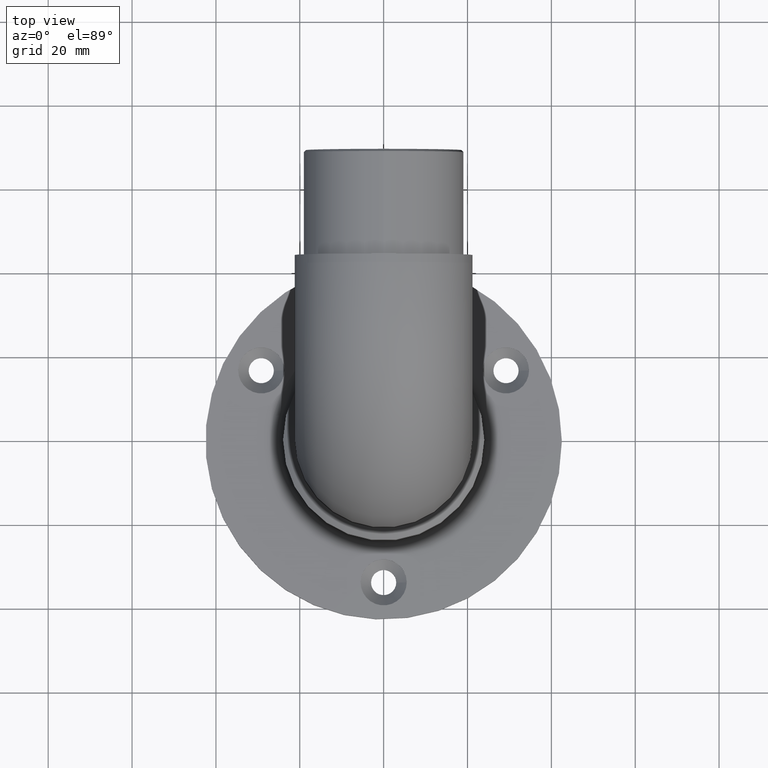
[diagram: clean part render]
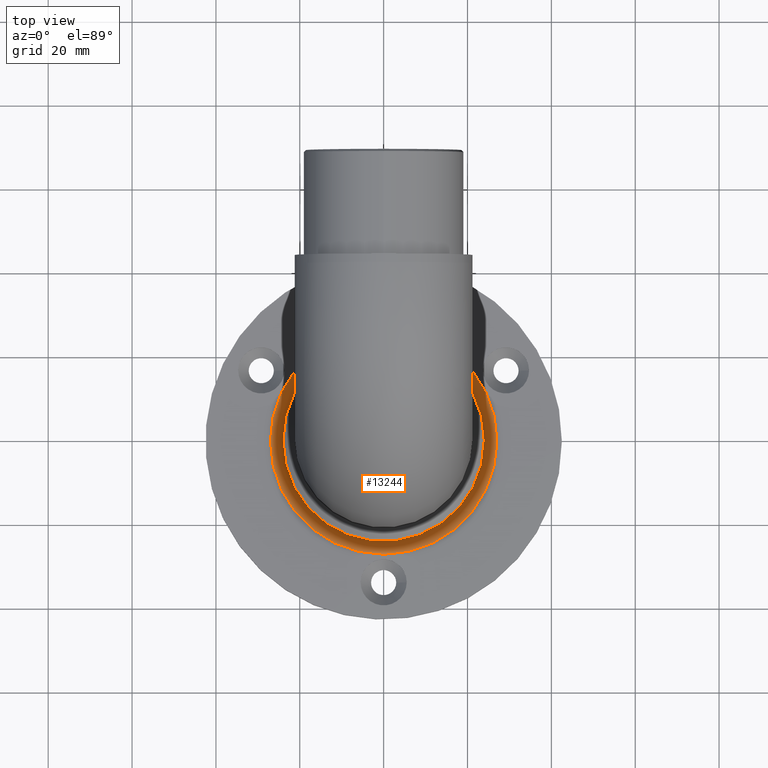
[diagram: same view with one face highlighted and labeled with its STEP entity id]
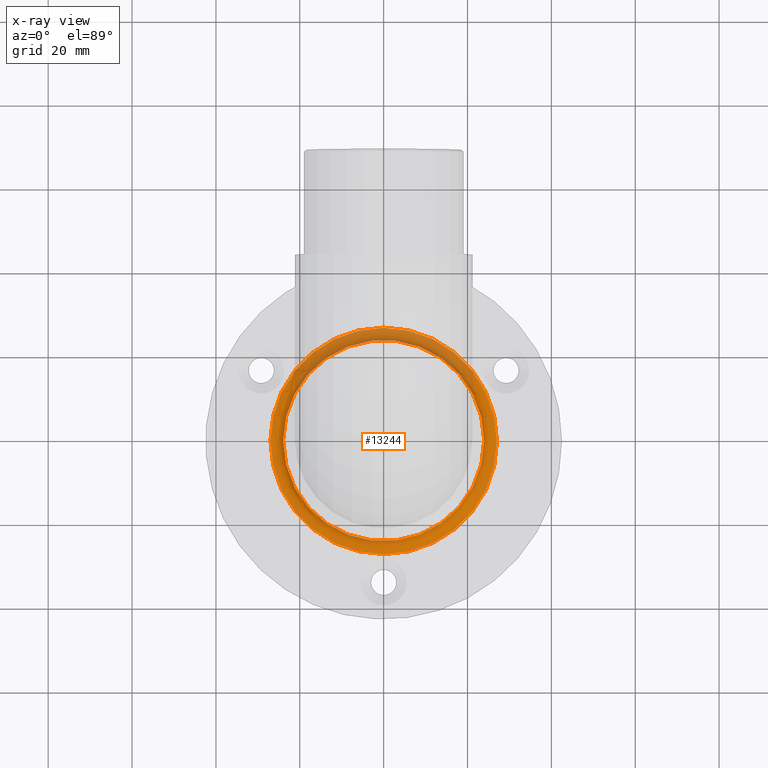
[diagram: x-ray of the same camera — body ghosted, the highlighted face saturated]
A machine part, top view. The second image highlights one B-rep face of the part: STEP entity #13244.
The next image is the same camera in x-ray: the body ghosted, the highlighted face saturated — about 31% of this face is hidden behind the body in this view.
In plain terms, the highlighted toroidal blend (fillet) surface has major radius 27 mm and minor (blend) radius 3 mm.
Its self-contained STEP definition (entity closure, byte-faithful):
#283 = CARTESIAN_POINT ( 'NONE',  ( 0.000000000000000000, 0.000000000000000000, 8.000000000000000000 ) ) ;
#1845 = FACE_OUTER_BOUND ( 'NONE', #8943, .T. ) ;
#3700 = DIRECTION ( 'NONE',  ( 1.000000000000000000, 0.000000000000000000, 0.000000000000000000 ) ) ;
#4578 = CIRCLE ( 'NONE', #15050, 27.00000000000000355 ) ;
#4721 = EDGE_CURVE ( 'NONE', #9221, #9221, #14777, .T. ) ;
#5066 = TOROIDAL_SURFACE ( 'NONE', #7639, 27.00000000000000355, 3.000000000000000000 ) ;
#5870 = AXIS2_PLACEMENT_3D ( 'NONE', #15122, #7883, #14793 ) ;
#6955 = DIRECTION ( 'NONE',  ( -0.000000000000000000, -0.000000000000000000, -1.000000000000000000 ) ) ;
#7508 = CARTESIAN_POINT ( 'NONE',  ( 27.00000000000000355, 0.000000000000000000, 5.000000000000000000 ) ) ;
#7639 = AXIS2_PLACEMENT_3D ( 'NONE', #283, #8581, #3700 ) ;
#7883 = DIRECTION ( 'NONE',  ( 0.000000000000000000, 0.000000000000000000, 1.000000000000000000 ) ) ;
#8095 = EDGE_LOOP ( 'NONE', ( #8508 ) ) ;
#8508 = ORIENTED_EDGE ( 'NONE', *, *, #4721, .F. ) ;
#8581 = DIRECTION ( 'NONE',  ( 0.000000000000000000, 0.000000000000000000, 1.000000000000000000 ) ) ;
#8793 = EDGE_CURVE ( 'NONE', #11487, #11487, #4578, .T. ) ;
#8943 = EDGE_LOOP ( 'NONE', ( #15451 ) ) ;
#9221 = VERTEX_POINT ( 'NONE', #9902 ) ;
#9902 = CARTESIAN_POINT ( 'NONE',  ( 24.00000000000000355, 0.000000000000000000, 8.000000000000000000 ) ) ;
#11480 = FACE_OUTER_BOUND ( 'NONE', #8095, .T. ) ;
#11487 = VERTEX_POINT ( 'NONE', #7508 ) ;
#11795 = CARTESIAN_POINT ( 'NONE',  ( 0.000000000000000000, 0.000000000000000000, 5.000000000000000000 ) ) ;
#13244 = ADVANCED_FACE ( 'NONE', ( #1845, #11480 ), #5066, .F. ) ;
#14063 = DIRECTION ( 'NONE',  ( 1.000000000000000000, 0.000000000000000000, 0.000000000000000000 ) ) ;
#14777 = CIRCLE ( 'NONE', #5870, 24.00000000000000355 ) ;
#14793 = DIRECTION ( 'NONE',  ( 1.000000000000000000, 0.000000000000000000, 0.000000000000000000 ) ) ;
#15050 = AXIS2_PLACEMENT_3D ( 'NONE', #11795, #6955, #14063 ) ;
#15122 = CARTESIAN_POINT ( 'NONE',  ( 0.000000000000000000, 0.000000000000000000, 8.000000000000000000 ) ) ;
#15451 = ORIENTED_EDGE ( 'NONE', *, *, #8793, .F. ) ;